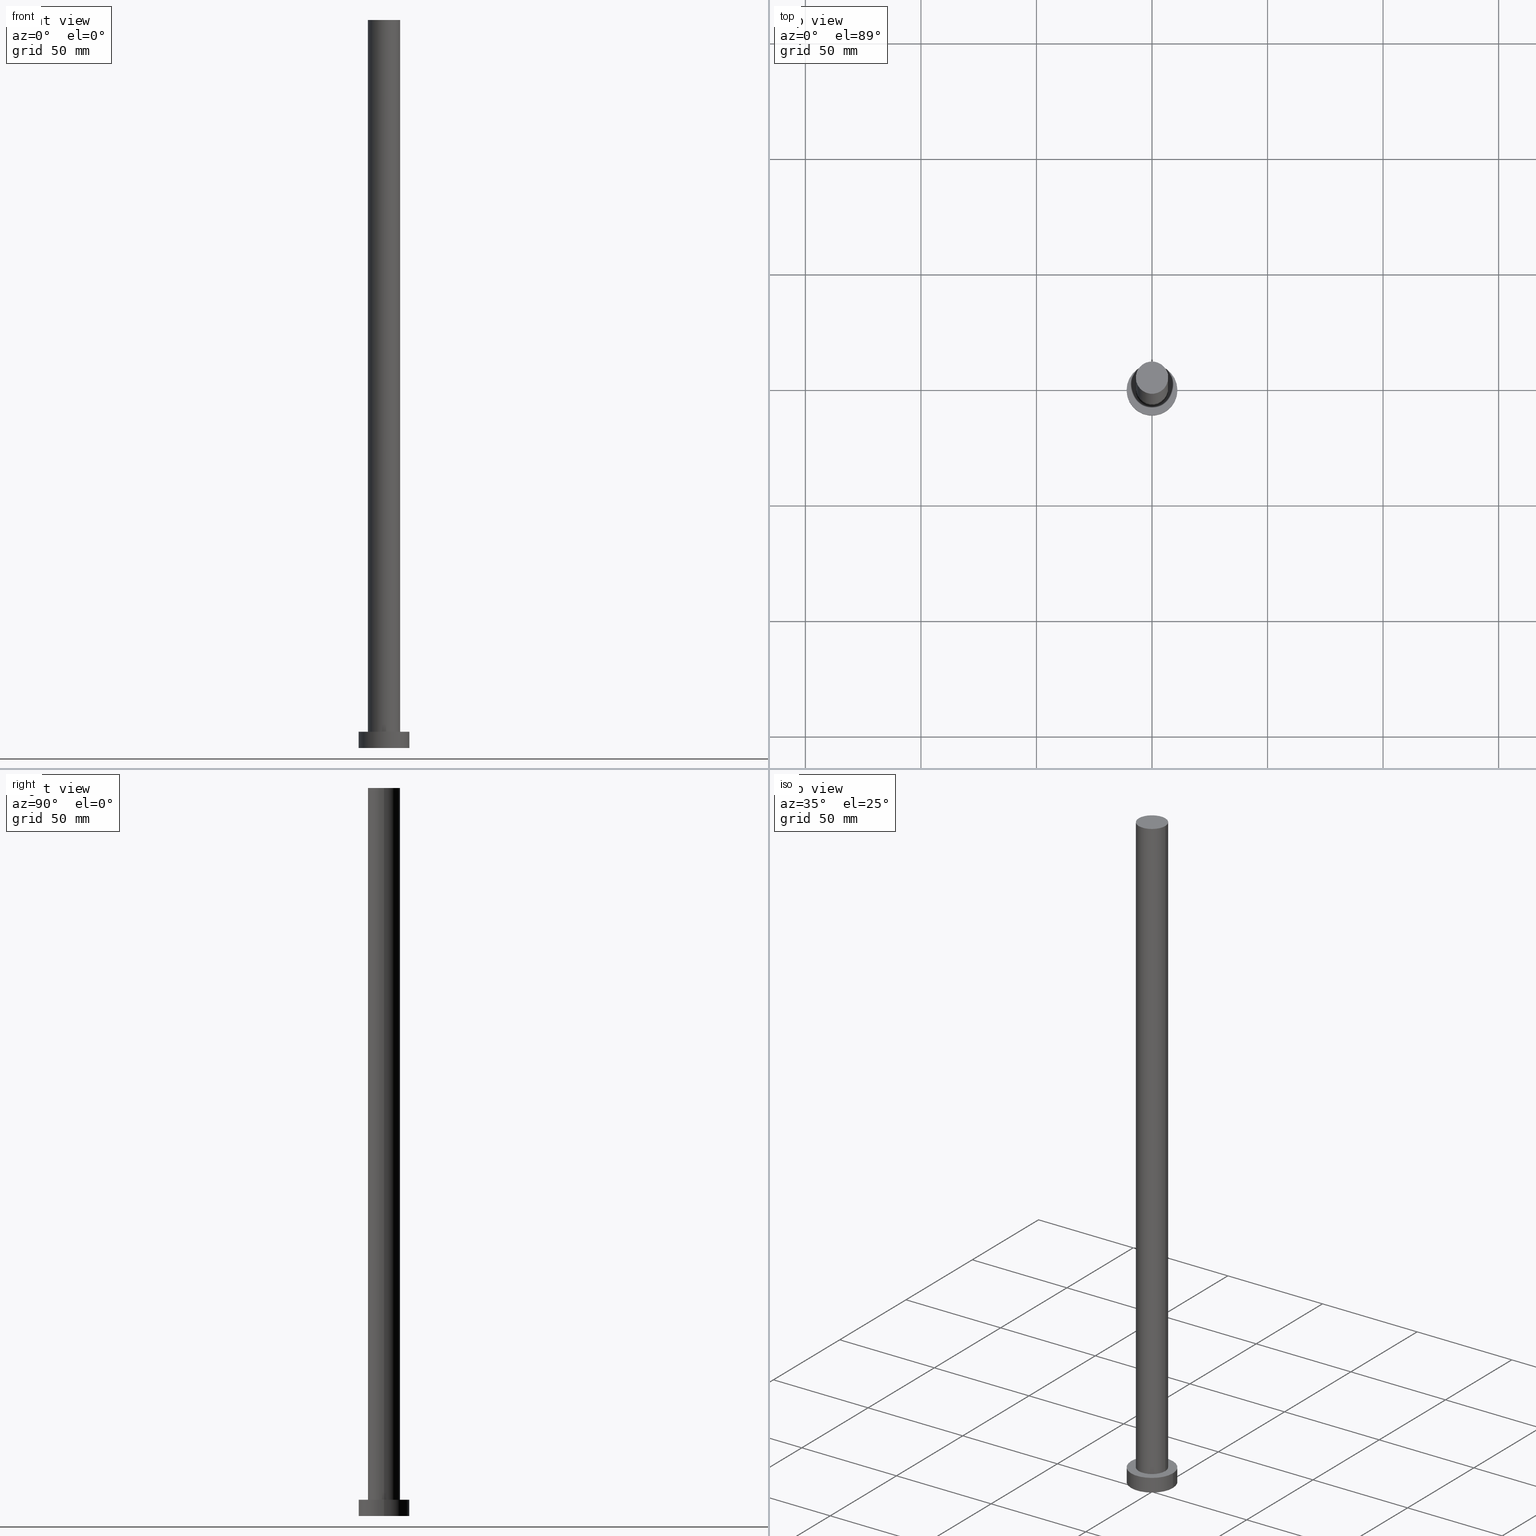
[diagram: canonical four-view strip — front | top / right | iso, engineering-drawing reading convention]
A machine part, canonical four-view strip (front | top / right | iso — engineering-drawing reading convention). The complete STEP part file that produces these views, byte-faithful:
ISO-10303-21;
HEADER;
FILE_DESCRIPTION (( 'STEP AP203' ),
    '1' );
FILE_NAME ('075c.STEP',
    '2023-02-13T10:35:28',
    ( '' ),
    ( '' ),
    'SwSTEP 2.0',
    'SolidWorks 2019',
    '' );
FILE_SCHEMA (( 'CONFIG_CONTROL_DESIGN' ));
ENDSEC;

DATA;
#1 = AXIS2_PLACEMENT_3D ( 'NONE', #248, #174, #241 ) ;
#2 = DIRECTION ( 'NONE',  ( 1.000000000000000000, 0.000000000000000000, 0.000000000000000000 ) ) ;
#3 = EDGE_CURVE ( 'NONE', #140, #100, #240, .T. ) ;
#4 = EDGE_LOOP ( 'NONE', ( #238, #184, #123, #12 ) ) ;
#5 = ORIENTED_EDGE ( 'NONE', *, *, #132, .T. ) ;
#6 = APPROVAL_PERSON_ORGANIZATION ( #175, #196, #246 ) ;
#7 = CALENDAR_DATE ( 2023, 13, 2 ) ;
#8 = CC_DESIGN_DATE_AND_TIME_ASSIGNMENT ( #91, #242, ( #19 ) ) ;
#9 = PLANE ( 'NONE',  #185 ) ;
#10 = AXIS2_PLACEMENT_3D ( 'NONE', #59, #144, #124 ) ;
#11 = CIRCLE ( 'NONE', #1, 11.00000000000000000 ) ;
#12 = ORIENTED_EDGE ( 'NONE', *, *, #141, .T. ) ;
#13 = ADVANCED_FACE ( 'NONE', ( #15 ), #177, .T. ) ;
#14 = DATE_AND_TIME ( #190, #147 ) ;
#15 = FACE_OUTER_BOUND ( 'NONE', #159, .T. ) ;
#16 = DESIGN_CONTEXT ( 'detailed design', #143, 'design' ) ;
#17 = PERSON_AND_ORGANIZATION ( #103, #180 ) ;
#18 = ORIENTED_EDGE ( 'NONE', *, *, #138, .T. ) ;
#19 = SECURITY_CLASSIFICATION ( '', '', #127 ) ;
#20 = PERSON_AND_ORGANIZATION_ROLE ( 'design_owner' ) ;
#21 = EDGE_CURVE ( 'NONE', #229, #218, #11, .T. ) ;
#22 = ORIENTED_EDGE ( 'NONE', *, *, #25, .T. ) ;
#23 = DIRECTION ( 'NONE',  ( 1.000000000000000000, 0.000000000000000000, 0.000000000000000000 ) ) ;
#24 = FACE_OUTER_BOUND ( 'NONE', #201, .T. ) ;
#25 = EDGE_CURVE ( 'NONE', #218, #229, #42, .T. ) ;
#26 = PERSON_AND_ORGANIZATION_ROLE ( 'classification_officer' ) ;
#27 = CARTESIAN_POINT ( 'NONE',  ( 11.00000000000000000, 1.347111479062088405E-15, 7.000000000000000000 ) ) ;
#28 = CALENDAR_DATE ( 2023, 13, 2 ) ;
#29 = EDGE_LOOP ( 'NONE', ( #126, #228 ) ) ;
#30 = CC_DESIGN_PERSON_AND_ORGANIZATION_ASSIGNMENT ( #38, #182, ( #32 ) ) ;
#31 = ORIENTED_EDGE ( 'NONE', *, *, #234, .F. ) ;
#32 = PRODUCT_DEFINITION_FORMATION_WITH_SPECIFIED_SOURCE ( 'LIBOVOLN�', '', #93, .NOT_KNOWN. ) ;
#33 = CARTESIAN_POINT ( 'NONE',  ( 7.000000000000000888, 8.572527594031474176E-16, 315.0000000000000000 ) ) ;
#34 = APPLICATION_PROTOCOL_DEFINITION ( 'international standard', 'config_control_design', 1994, #143 ) ;
#35 = DATE_AND_TIME ( #188, #125 ) ;
#36 = DIRECTION ( 'NONE',  ( 0.000000000000000000, 0.000000000000000000, 1.000000000000000000 ) ) ;
#37 = EDGE_LOOP ( 'NONE', ( #46, #205, #18, #199 ) ) ;
#38 = PERSON_AND_ORGANIZATION ( #103, #180 ) ;
#39 = DIRECTION ( 'NONE',  ( -1.000000000000000000, 0.000000000000000000, 0.000000000000000000 ) ) ;
#40 = CARTESIAN_POINT ( 'NONE',  ( -7.000000000000000888, 0.000000000000000000, 315.0000000000000000 ) ) ;
#41 = VERTEX_POINT ( 'NONE', #50 ) ;
#42 = CIRCLE ( 'NONE', #90, 11.00000000000000000 ) ;
#43 = CARTESIAN_POINT ( 'NONE',  ( 7.000000000000000888, 8.572527594031474176E-16, 315.0000000000000000 ) ) ;
#44 =( NAMED_UNIT ( * ) SI_UNIT ( $, .STERADIAN. ) SOLID_ANGLE_UNIT ( ) );
#45 = PRODUCT_DEFINITION ( 'NEZN�M�', '', #32, #16 ) ;
#46 = ORIENTED_EDGE ( 'NONE', *, *, #132, .F. ) ;
#47 = DIRECTION ( 'NONE',  ( -0.000000000000000000, -0.000000000000000000, -1.000000000000000000 ) ) ;
#48 = APPROVAL_PERSON_ORGANIZATION ( #107, #72, #253 ) ;
#49 = DIRECTION ( 'NONE',  ( 0.000000000000000000, 0.000000000000000000, 1.000000000000000000 ) ) ;
#50 = CARTESIAN_POINT ( 'NONE',  ( 7.000000000000000888, 8.572527594031474176E-16, 7.000000000000000000 ) ) ;
#51 = APPROVAL_DATE_TIME ( #35, #69 ) ;
#52 = DIRECTION ( 'NONE',  ( 0.000000000000000000, 0.000000000000000000, 1.000000000000000000 ) ) ;
#53 = AXIS2_PLACEMENT_3D ( 'NONE', #54, #97, #77 ) ;
#54 = CARTESIAN_POINT ( 'NONE',  ( 0.000000000000000000, 0.000000000000000000, 7.000000000000000000 ) ) ;
#55 = CC_DESIGN_DATE_AND_TIME_ASSIGNMENT ( #14, #96, ( #45 ) ) ;
#56 = DIRECTION ( 'NONE',  ( 0.000000000000000000, 0.000000000000000000, 1.000000000000000000 ) ) ;
#57 = VECTOR ( 'NONE', #106, 1000.000000000000000 ) ;
#58 = EDGE_CURVE ( 'NONE', #100, #140, #186, .T. ) ;
#59 = CARTESIAN_POINT ( 'NONE',  ( 0.000000000000000000, 0.000000000000000000, 0.000000000000000000 ) ) ;
#60 = AXIS2_PLACEMENT_3D ( 'NONE', #215, #56, #250 ) ;
#61 = CARTESIAN_POINT ( 'NONE',  ( 0.000000000000000000, 0.000000000000000000, 315.0000000000000000 ) ) ;
#62 = CARTESIAN_POINT ( 'NONE',  ( 0.000000000000000000, 0.000000000000000000, 7.000000000000000000 ) ) ;
#63 = APPROVAL_STATUS ( 'not_yet_approved' ) ;
#64 = DIRECTION ( 'NONE',  ( -0.000000000000000000, -0.000000000000000000, -1.000000000000000000 ) ) ;
#65 =( NAMED_UNIT ( * ) PLANE_ANGLE_UNIT ( ) SI_UNIT ( $, .RADIAN. ) );
#66 = CARTESIAN_POINT ( 'NONE',  ( 0.000000000000000000, 0.000000000000000000, 0.000000000000000000 ) ) ;
#67 = APPROVAL_PERSON_ORGANIZATION ( #75, #69, #115 ) ;
#68 = ORIENTED_EDGE ( 'NONE', *, *, #171, .F. ) ;
#69 = APPROVAL ( #119, 'NEUR�EN�' ) ;
#70 = SHAPE_DEFINITION_REPRESENTATION ( #169, #203 ) ;
#71 = CC_DESIGN_SECURITY_CLASSIFICATION ( #19, ( #32 ) ) ;
#72 = APPROVAL ( #63, 'NEUR�EN�' ) ;
#73 = PLANE ( 'NONE',  #204 ) ;
#74 = UNCERTAINTY_MEASURE_WITH_UNIT (LENGTH_MEASURE( 1.000000000000000082E-05 ), #216, 'distance_accuracy_value', 'NONE');
#75 = PERSON_AND_ORGANIZATION ( #103, #180 ) ;
#76 = COORDINATED_UNIVERSAL_TIME_OFFSET ( 1, 0, .AHEAD. ) ;
#77 = DIRECTION ( 'NONE',  ( -1.000000000000000000, 0.000000000000000000, 0.000000000000000000 ) ) ;
#78 = CARTESIAN_POINT ( 'NONE',  ( 0.000000000000000000, 0.000000000000000000, 7.000000000000000000 ) ) ;
#79 = ORIENTED_EDGE ( 'NONE', *, *, #21, .T. ) ;
#80 = ORIENTED_EDGE ( 'NONE', *, *, #217, .T. ) ;
#81 = AXIS2_PLACEMENT_3D ( 'NONE', #149, #92, #219 ) ;
#82 = EDGE_LOOP ( 'NONE', ( #122, #85 ) ) ;
#83 = CARTESIAN_POINT ( 'NONE',  ( 0.000000000000000000, 0.000000000000000000, 315.0000000000000000 ) ) ;
#84 = VECTOR ( 'NONE', #64, 1000.000000000000000 ) ;
#85 = ORIENTED_EDGE ( 'NONE', *, *, #3, .T. ) ;
#86 = VERTEX_POINT ( 'NONE', #156 ) ;
#87 = LOCAL_TIME ( 11, 35, 28.00000000000000000, #105 ) ;
#88 = ADVANCED_FACE ( 'NONE', ( #244 ), #73, .F. ) ;
#89 =( GEOMETRIC_REPRESENTATION_CONTEXT ( 3 ) GLOBAL_UNCERTAINTY_ASSIGNED_CONTEXT ( ( #74 ) ) GLOBAL_UNIT_ASSIGNED_CONTEXT ( ( #216, #65, #44 ) ) REPRESENTATION_CONTEXT ( 'NONE', 'WORKASPACE' ) );
#90 = AXIS2_PLACEMENT_3D ( 'NONE', #78, #158, #226 ) ;
#91 = DATE_AND_TIME ( #7, #87 ) ;
#92 = DIRECTION ( 'NONE',  ( -0.000000000000000000, -0.000000000000000000, -1.000000000000000000 ) ) ;
#93 = PRODUCT ( '075c', '075c', '', ( #239 ) ) ;
#94 = CARTESIAN_POINT ( 'NONE',  ( -11.00000000000000000, 0.000000000000000000, 7.000000000000000000 ) ) ;
#95 = ADVANCED_FACE ( 'NONE', ( #137 ), #183, .T. ) ;
#96 = DATE_TIME_ROLE ( 'creation_date' ) ;
#97 = DIRECTION ( 'NONE',  ( -0.000000000000000000, -0.000000000000000000, -1.000000000000000000 ) ) ;
#98 = PERSON_AND_ORGANIZATION_ROLE ( 'creator' ) ;
#99 = PERSON_AND_ORGANIZATION_ROLE ( 'creator' ) ;
#100 = VERTEX_POINT ( 'NONE', #209 ) ;
#101 = APPLICATION_CONTEXT ( 'configuration controlled 3d designs of mechanical parts and assemblies' ) ;
#102 = LINE ( 'NONE', #40, #150 ) ;
#103 = PERSON ( 'NEUR�EN�', 'NEUR�EN�', 'NEUR�EN�', ('NEUR�EN�'), ('NEUR�EN�'), ('NEUR�EN�') ) ;
#104 = DIRECTION ( 'NONE',  ( 1.000000000000000000, 0.000000000000000000, -0.000000000000000000 ) ) ;
#105 = COORDINATED_UNIVERSAL_TIME_OFFSET ( 1, 0, .AHEAD. ) ;
#106 = DIRECTION ( 'NONE',  ( -0.000000000000000000, -0.000000000000000000, -1.000000000000000000 ) ) ;
#107 = PERSON_AND_ORGANIZATION ( #103, #180 ) ;
#108 = DATE_AND_TIME ( #28, #193 ) ;
#109 = EDGE_LOOP ( 'NONE', ( #31, #68 ) ) ;
#110 = DIRECTION ( 'NONE',  ( 0.000000000000000000, 0.000000000000000000, 1.000000000000000000 ) ) ;
#111 = EDGE_CURVE ( 'NONE', #100, #236, #102, .T. ) ;
#112 = AXIS2_PLACEMENT_3D ( 'NONE', #66, #110, #2 ) ;
#113 = AXIS2_PLACEMENT_3D ( 'NONE', #142, #36, #23 ) ;
#114 = EDGE_CURVE ( 'NONE', #41, #236, #170, .T. ) ;
#115 = APPROVAL_ROLE ( '' ) ;
#116 = COORDINATED_UNIVERSAL_TIME_OFFSET ( 1, 0, .AHEAD. ) ;
#117 = ORIENTED_EDGE ( 'NONE', *, *, #21, .F. ) ;
#118 = ADVANCED_FACE ( 'NONE', ( #230 ), #160, .T. ) ;
#119 = APPROVAL_STATUS ( 'not_yet_approved' ) ;
#120 = DIRECTION ( 'NONE',  ( 1.000000000000000000, 0.000000000000000000, 0.000000000000000000 ) ) ;
#121 = ORIENTED_EDGE ( 'NONE', *, *, #3, .F. ) ;
#122 = ORIENTED_EDGE ( 'NONE', *, *, #58, .T. ) ;
#123 = ORIENTED_EDGE ( 'NONE', *, *, #111, .T. ) ;
#124 = DIRECTION ( 'NONE',  ( 1.000000000000000000, 0.000000000000000000, 0.000000000000000000 ) ) ;
#125 = LOCAL_TIME ( 11, 35, 28.00000000000000000, #222 ) ;
#126 = ORIENTED_EDGE ( 'NONE', *, *, #141, .F. ) ;
#127 = SECURITY_CLASSIFICATION_LEVEL ( 'unclassified' ) ;
#128 = FACE_OUTER_BOUND ( 'NONE', #4, .T. ) ;
#129 = DIRECTION ( 'NONE',  ( -1.000000000000000000, 0.000000000000000000, 0.000000000000000000 ) ) ;
#130 = AXIS2_PLACEMENT_3D ( 'NONE', #83, #212, #39 ) ;
#131 = CARTESIAN_POINT ( 'NONE',  ( 0.000000000000000000, 0.000000000000000000, 7.000000000000000000 ) ) ;
#132 = EDGE_CURVE ( 'NONE', #229, #200, #210, .T. ) ;
#133 = ORIENTED_EDGE ( 'NONE', *, *, #111, .F. ) ;
#134 = AXIS2_PLACEMENT_3D ( 'NONE', #62, #165, #129 ) ;
#135 = FACE_OUTER_BOUND ( 'NONE', #195, .T. ) ;
#136 = PERSON_AND_ORGANIZATION ( #103, #180 ) ;
#137 = FACE_OUTER_BOUND ( 'NONE', #37, .T. ) ;
#138 = EDGE_CURVE ( 'NONE', #218, #86, #214, .T. ) ;
#139 = CARTESIAN_POINT ( 'NONE',  ( 0.000000000000000000, 0.000000000000000000, 0.000000000000000000 ) ) ;
#140 = VERTEX_POINT ( 'NONE', #43 ) ;
#141 = EDGE_CURVE ( 'NONE', #236, #41, #208, .T. ) ;
#142 = CARTESIAN_POINT ( 'NONE',  ( 0.000000000000000000, 0.000000000000000000, 315.0000000000000000 ) ) ;
#143 = APPLICATION_CONTEXT ( 'configuration controlled 3d designs of mechanical parts and assemblies' ) ;
#144 = DIRECTION ( 'NONE',  ( 0.000000000000000000, 0.000000000000000000, 1.000000000000000000 ) ) ;
#145 = APPROVAL_DATE_TIME ( #108, #72 ) ;
#146 = CYLINDRICAL_SURFACE ( 'NONE', #130, 7.000000000000000888 ) ;
#147 = LOCAL_TIME ( 11, 35, 28.00000000000000000, #116 ) ;
#148 = DIRECTION ( 'NONE',  ( 1.000000000000000000, 0.000000000000000000, 0.000000000000000000 ) ) ;
#149 = CARTESIAN_POINT ( 'NONE',  ( 0.000000000000000000, 0.000000000000000000, 315.0000000000000000 ) ) ;
#150 = VECTOR ( 'NONE', #249, 1000.000000000000000 ) ;
#151 = CYLINDRICAL_SURFACE ( 'NONE', #81, 7.000000000000000888 ) ;
#152 = CC_DESIGN_APPROVAL ( #72, ( #19 ) ) ;
#153 = CARTESIAN_POINT ( 'NONE',  ( 0.000000000000000000, 0.000000000000000000, 0.000000000000000000 ) ) ;
#154 = CALENDAR_DATE ( 2023, 13, 2 ) ;
#155 = LOCAL_TIME ( 11, 35, 28.00000000000000000, #76 ) ;
#156 = CARTESIAN_POINT ( 'NONE',  ( -11.00000000000000000, 0.000000000000000000, 0.000000000000000000 ) ) ;
#157 = CC_DESIGN_PERSON_AND_ORGANIZATION_ASSIGNMENT ( #247, #99, ( #45 ) ) ;
#158 = DIRECTION ( 'NONE',  ( 0.000000000000000000, 0.000000000000000000, 1.000000000000000000 ) ) ;
#159 = EDGE_LOOP ( 'NONE', ( #117, #5, #254, #178 ) ) ;
#160 = PLANE ( 'NONE',  #164 ) ;
#161 = ADVANCED_FACE ( 'NONE', ( #128 ), #146, .T. ) ;
#162 = COORDINATED_UNIVERSAL_TIME_OFFSET ( 1, 0, .AHEAD. ) ;
#163 = ORIENTED_EDGE ( 'NONE', *, *, #114, .T. ) ;
#164 = AXIS2_PLACEMENT_3D ( 'NONE', #61, #232, #104 ) ;
#165 = DIRECTION ( 'NONE',  ( -0.000000000000000000, -0.000000000000000000, -1.000000000000000000 ) ) ;
#166 = VECTOR ( 'NONE', #47, 1000.000000000000000 ) ;
#167 = DIRECTION ( 'NONE',  ( 0.000000000000000000, 0.000000000000000000, 1.000000000000000000 ) ) ;
#168 = DIRECTION ( 'NONE',  ( 1.000000000000000000, 0.000000000000000000, -0.000000000000000000 ) ) ;
#169 = PRODUCT_DEFINITION_SHAPE ( 'NONE', 'NONE',  #45 ) ;
#170 = CIRCLE ( 'NONE', #231, 7.000000000000000888 ) ;
#171 = EDGE_CURVE ( 'NONE', #200, #86, #223, .T. ) ;
#172 = CARTESIAN_POINT ( 'NONE',  ( 0.000000000000000000, 0.000000000000000000, 315.0000000000000000 ) ) ;
#173 = APPROVAL_STATUS ( 'not_yet_approved' ) ;
#174 = DIRECTION ( 'NONE',  ( 0.000000000000000000, 0.000000000000000000, 1.000000000000000000 ) ) ;
#175 = PERSON_AND_ORGANIZATION ( #103, #180 ) ;
#176 = CC_DESIGN_APPROVAL ( #196, ( #32 ) ) ;
#177 = CYLINDRICAL_SURFACE ( 'NONE', #53, 11.00000000000000000 ) ;
#178 = ORIENTED_EDGE ( 'NONE', *, *, #138, .F. ) ;
#179 = DIRECTION ( 'NONE',  ( 0.000000000000000000, 0.000000000000000000, 1.000000000000000000 ) ) ;
#180 = ORGANIZATION ( 'NEUR�EN�', 'NEUR�EN�', '' ) ;
#181 = CC_DESIGN_PERSON_AND_ORGANIZATION_ASSIGNMENT ( #136, #20, ( #93 ) ) ;
#182 = PERSON_AND_ORGANIZATION_ROLE ( 'design_supplier' ) ;
#183 = CYLINDRICAL_SURFACE ( 'NONE', #134, 11.00000000000000000 ) ;
#184 = ORIENTED_EDGE ( 'NONE', *, *, #58, .F. ) ;
#185 = AXIS2_PLACEMENT_3D ( 'NONE', #131, #167, #168 ) ;
#186 = CIRCLE ( 'NONE', #113, 7.000000000000000888 ) ;
#187 = FACE_BOUND ( 'NONE', #29, .T. ) ;
#188 = CALENDAR_DATE ( 2023, 13, 2 ) ;
#189 = CLOSED_SHELL ( 'NONE', ( #202, #13, #95, #225, #88, #161, #118 ) ) ;
#190 = CALENDAR_DATE ( 2023, 13, 2 ) ;
#191 = DIRECTION ( 'NONE',  ( 1.000000000000000000, 0.000000000000000000, 0.000000000000000000 ) ) ;
#192 = DATE_AND_TIME ( #154, #155 ) ;
#193 = LOCAL_TIME ( 11, 35, 28.00000000000000000, #162 ) ;
#194 = DIRECTION ( 'NONE',  ( 0.000000000000000000, 0.000000000000000000, 1.000000000000000000 ) ) ;
#195 = EDGE_LOOP ( 'NONE', ( #22, #79 ) ) ;
#196 = APPROVAL ( #173, 'NEUR�EN�' ) ;
#197 = CARTESIAN_POINT ( 'NONE',  ( 11.00000000000000000, 1.347111479062088405E-15, 0.000000000000000000 ) ) ;
#198 = PERSON_AND_ORGANIZATION ( #103, #180 ) ;
#199 = ORIENTED_EDGE ( 'NONE', *, *, #234, .T. ) ;
#200 = VERTEX_POINT ( 'NONE', #197 ) ;
#201 = EDGE_LOOP ( 'NONE', ( #121, #80, #163, #133 ) ) ;
#202 = ADVANCED_FACE ( 'NONE', ( #24 ), #151, .T. ) ;
#203 = ADVANCED_BREP_SHAPE_REPRESENTATION ( '075c', ( #245, #255 ), #89 ) ;
#204 = AXIS2_PLACEMENT_3D ( 'NONE', #139, #52, #207 ) ;
#205 = ORIENTED_EDGE ( 'NONE', *, *, #25, .F. ) ;
#206 = AXIS2_PLACEMENT_3D ( 'NONE', #172, #194, #191 ) ;
#207 = DIRECTION ( 'NONE',  ( 1.000000000000000000, 0.000000000000000000, -0.000000000000000000 ) ) ;
#208 = CIRCLE ( 'NONE', #60, 7.000000000000000888 ) ;
#209 = CARTESIAN_POINT ( 'NONE',  ( -7.000000000000000888, 0.000000000000000000, 315.0000000000000000 ) ) ;
#210 = LINE ( 'NONE', #27, #57 ) ;
#211 = CIRCLE ( 'NONE', #112, 11.00000000000000000 ) ;
#212 = DIRECTION ( 'NONE',  ( -0.000000000000000000, -0.000000000000000000, -1.000000000000000000 ) ) ;
#213 = PRODUCT_RELATED_PRODUCT_CATEGORY ( 'detail', '', ( #93 ) ) ;
#214 = LINE ( 'NONE', #227, #84 ) ;
#215 = CARTESIAN_POINT ( 'NONE',  ( 0.000000000000000000, 0.000000000000000000, 7.000000000000000000 ) ) ;
#216 =( LENGTH_UNIT ( ) NAMED_UNIT ( * ) SI_UNIT ( .MILLI., .METRE. ) );
#217 = EDGE_CURVE ( 'NONE', #140, #41, #235, .T. ) ;
#218 = VERTEX_POINT ( 'NONE', #94 ) ;
#219 = DIRECTION ( 'NONE',  ( -1.000000000000000000, 0.000000000000000000, 0.000000000000000000 ) ) ;
#220 = CC_DESIGN_PERSON_AND_ORGANIZATION_ASSIGNMENT ( #17, #98, ( #32 ) ) ;
#221 = CC_DESIGN_APPROVAL ( #69, ( #45 ) ) ;
#222 = COORDINATED_UNIVERSAL_TIME_OFFSET ( 1, 0, .AHEAD. ) ;
#223 = CIRCLE ( 'NONE', #10, 11.00000000000000000 ) ;
#224 = APPROVAL_DATE_TIME ( #192, #196 ) ;
#225 = ADVANCED_FACE ( 'NONE', ( #187, #135 ), #9, .T. ) ;
#226 = DIRECTION ( 'NONE',  ( 1.000000000000000000, 0.000000000000000000, 0.000000000000000000 ) ) ;
#227 = CARTESIAN_POINT ( 'NONE',  ( -11.00000000000000000, 0.000000000000000000, 7.000000000000000000 ) ) ;
#228 = ORIENTED_EDGE ( 'NONE', *, *, #114, .F. ) ;
#229 = VERTEX_POINT ( 'NONE', #233 ) ;
#230 = FACE_OUTER_BOUND ( 'NONE', #82, .T. ) ;
#231 = AXIS2_PLACEMENT_3D ( 'NONE', #252, #179, #148 ) ;
#232 = DIRECTION ( 'NONE',  ( 0.000000000000000000, 0.000000000000000000, 1.000000000000000000 ) ) ;
#233 = CARTESIAN_POINT ( 'NONE',  ( 11.00000000000000000, 1.347111479062088405E-15, 7.000000000000000000 ) ) ;
#234 = EDGE_CURVE ( 'NONE', #86, #200, #211, .T. ) ;
#235 = LINE ( 'NONE', #33, #166 ) ;
#236 = VERTEX_POINT ( 'NONE', #237 ) ;
#237 = CARTESIAN_POINT ( 'NONE',  ( -7.000000000000000888, 0.000000000000000000, 7.000000000000000000 ) ) ;
#238 = ORIENTED_EDGE ( 'NONE', *, *, #217, .F. ) ;
#239 = MECHANICAL_CONTEXT ( 'NONE', #101, 'mechanical' ) ;
#240 = CIRCLE ( 'NONE', #206, 7.000000000000000888 ) ;
#241 = DIRECTION ( 'NONE',  ( 1.000000000000000000, 0.000000000000000000, 0.000000000000000000 ) ) ;
#242 = DATE_TIME_ROLE ( 'classification_date' ) ;
#243 = APPLICATION_PROTOCOL_DEFINITION ( 'international standard', 'config_control_design', 1994, #101 ) ;
#244 = FACE_OUTER_BOUND ( 'NONE', #109, .T. ) ;
#245 = MANIFOLD_SOLID_BREP ( 'P�idat vysunut�m3', #189 ) ;
#246 = APPROVAL_ROLE ( '' ) ;
#247 = PERSON_AND_ORGANIZATION ( #103, #180 ) ;
#248 = CARTESIAN_POINT ( 'NONE',  ( 0.000000000000000000, 0.000000000000000000, 7.000000000000000000 ) ) ;
#249 = DIRECTION ( 'NONE',  ( -0.000000000000000000, -0.000000000000000000, -1.000000000000000000 ) ) ;
#250 = DIRECTION ( 'NONE',  ( 1.000000000000000000, 0.000000000000000000, 0.000000000000000000 ) ) ;
#251 = CC_DESIGN_PERSON_AND_ORGANIZATION_ASSIGNMENT ( #198, #26, ( #19 ) ) ;
#252 = CARTESIAN_POINT ( 'NONE',  ( 0.000000000000000000, 0.000000000000000000, 7.000000000000000000 ) ) ;
#253 = APPROVAL_ROLE ( '' ) ;
#254 = ORIENTED_EDGE ( 'NONE', *, *, #171, .T. ) ;
#255 = AXIS2_PLACEMENT_3D ( 'NONE', #153, #49, #120 ) ;
ENDSEC;
END-ISO-10303-21;
